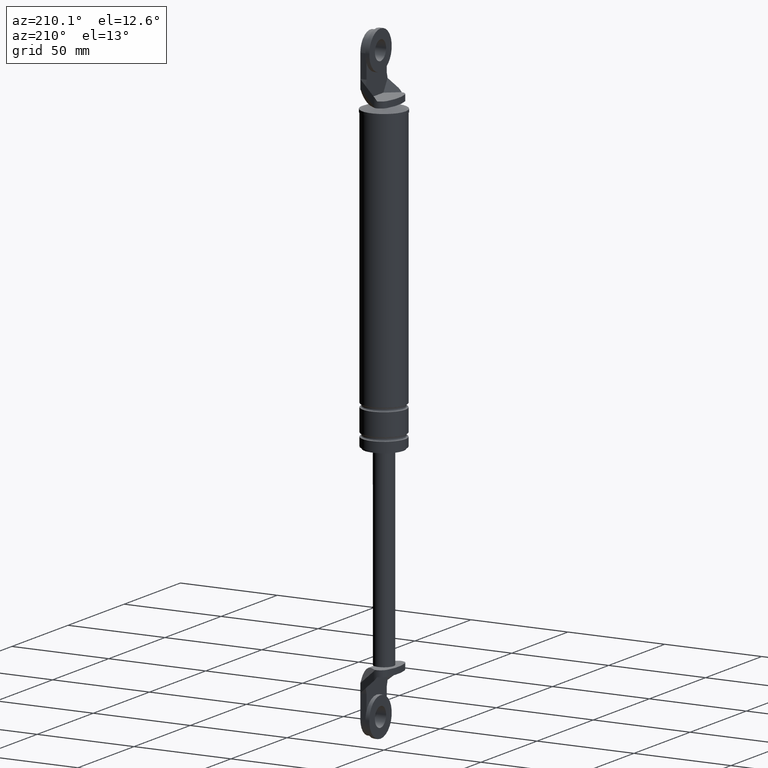
[diagram: clean part render]
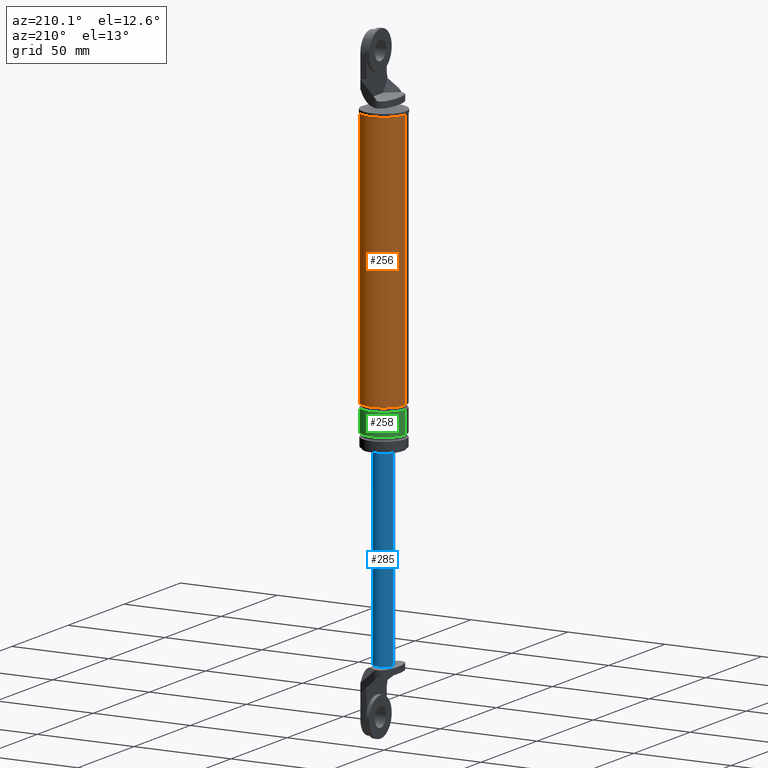
[diagram: same view with three faces highlighted in distinct colors, each labeled with its STEP entity id]
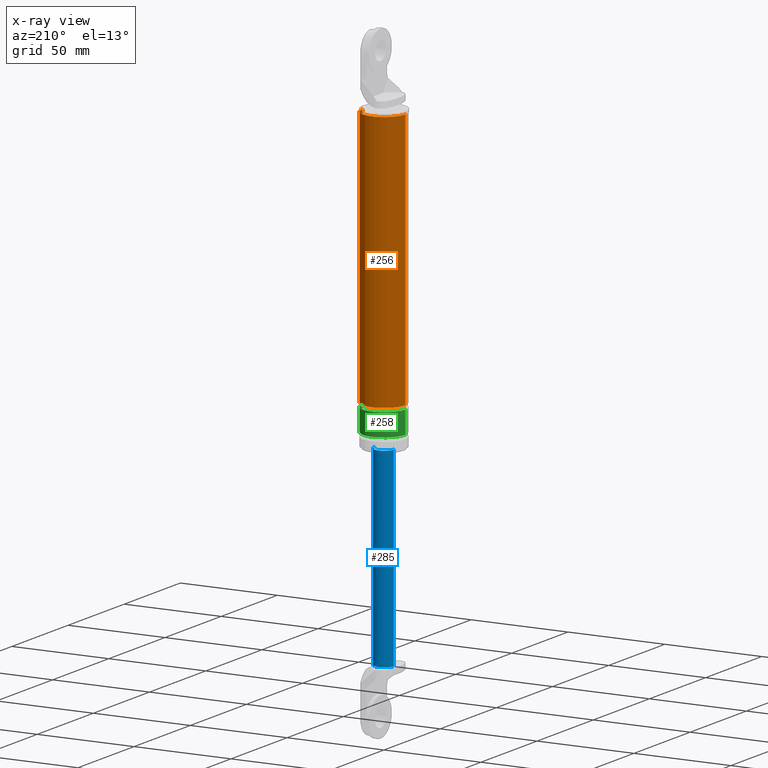
[diagram: x-ray of the same camera — body ghosted, the three highlighted faces saturated]
A machine part, auxiliary view with three faces highlighted in distinct colors.
The next image is the same camera in x-ray (body ghosted, the three faces saturated) — at least one of them is partly hidden behind the body in this view.
Their STEP definitions:

[orange] entity #256 — the highlighted cylindrical surface (edge-blend (fillet) strip) has radius 11 mm, axis along (0, 0, 1).
#256=ADVANCED_FACE('',(#817),#816,.T.);
#816=CYLINDRICAL_SURFACE('',#1576,1.10000000000E+001);
#817=FACE_OUTER_BOUND('',#1577,.T.);
#1573=CARTESIAN_POINT('',(0.00000000000E+000,3.58204186421E-014,0.00000000000E+000));
#1574=DIRECTION('',(-0.00000000000E+000,-0.00000000000E+000,1.00000000000E+000));
#1575=DIRECTION('',(1.00000000000E+000,0.00000000000E+000,0.00000000000E+000));
#1576=AXIS2_PLACEMENT_3D('',#1573,#1574,#1575);
#1577=EDGE_LOOP('',(#2022,#2023,#2024,#2025));
#2022=ORIENTED_EDGE('',*,*,#2274,.T.);
#2023=ORIENTED_EDGE('',*,*,#2305,.F.);
#2024=ORIENTED_EDGE('',*,*,#2287,.F.);
#2025=ORIENTED_EDGE('',*,*,#2306,.T.);
#2274=EDGE_CURVE('',#3009,#3008,#3016,.T.);
#2287=EDGE_CURVE('',#3096,#3097,#3098,.T.);
#2305=EDGE_CURVE('',#3097,#3008,#3212,.T.);
#2306=EDGE_CURVE('',#3096,#3009,#3218,.T.);
#3008=VERTEX_POINT('',#4107);
#3009=VERTEX_POINT('',#4108);
#3016=CIRCLE('',#4116,1.10000000000E+001);
#3096=VERTEX_POINT('',#4155);
#3097=VERTEX_POINT('',#4156);
#3098=CIRCLE('',#4160,1.10000000000E+001);
#3212=(BOUNDED_CURVE() B_SPLINE_CURVE(1,(#4227,#4228),.UNSPECIFIED.,.F.,.F.) B_SPLINE_CURVE_WITH_KNOTS((2,2),(6.53594771397E-002,9.34640522737E-001),.UNSPECIFIED.) CURVE() GEOMETRIC_REPRESENTATION_ITEM() RATIONAL_B_SPLINE_CURVE((1.00000000000E+000,1.00000000000E+000)) REPRESENTATION_ITEM('') );
#3218=(BOUNDED_CURVE() B_SPLINE_CURVE(1,(#4229,#4230),.UNSPECIFIED.,.F.,.F.) B_SPLINE_CURVE_WITH_KNOTS((2,2),(6.53594771242E-002,9.34640522876E-001),.UNSPECIFIED.) CURVE() GEOMETRIC_REPRESENTATION_ITEM() RATIONAL_B_SPLINE_CURVE((7.50000000000E-001,7.50000000000E-001)) REPRESENTATION_ITEM('') );
#4107=CARTESIAN_POINT('',(1.10000000000E+001,3.61192557345E-014,8.49999850000E+001));
#4108=CARTESIAN_POINT('',(-1.10000000000E+001,3.58204186421E-014,8.49999850000E+001));
#4113=CARTESIAN_POINT('',(0.00000000000E+000,3.58204186421E-014,8.49999850000E+001));
#4114=DIRECTION('',(-0.00000000000E+000,0.00000000000E+000,-1.00000000000E+000));
#4115=DIRECTION('',(-1.00000000000E+000,-1.22460635382E-016,0.00000000000E+000));
#4116=AXIS2_PLACEMENT_3D('',#4113,#4114,#4115);
#4155=CARTESIAN_POINT('',(-1.10000000000E+001,3.58204186421E-014,-4.80000150000E+001));
#4156=CARTESIAN_POINT('',(1.10000000000E+001,3.61192557345E-014,-4.80000150000E+001));
#4157=CARTESIAN_POINT('',(0.00000000000E+000,3.58204186421E-014,-4.80000150000E+001));
#4158=DIRECTION('',(-0.00000000000E+000,0.00000000000E+000,-1.00000000000E+000));
#4159=DIRECTION('',(-1.00000000000E+000,-1.22460635382E-016,0.00000000000E+000));
#4160=AXIS2_PLACEMENT_3D('',#4157,#4158,#4159);
#4227=CARTESIAN_POINT('',(1.10000000000E+001,3.58204186421E-014,-4.80000149976E+001));
#4228=CARTESIAN_POINT('',(1.10000000000E+001,3.58204186421E-014,8.49999849788E+001));
#4229=CARTESIAN_POINT('',(-1.10000000000E+001,3.55271367880E-014,-4.80000150000E+001));
#4230=CARTESIAN_POINT('',(-1.10000000000E+001,3.55271367880E-014,8.49999850000E+001));

[blue] entity #285 — the highlighted cylindrical surface (edge-blend (fillet) strip) has radius 5 mm, axis along (0, 0, 1).
#285=ADVANCED_FACE('',(#1109),#1108,.T.);
#1108=CYLINDRICAL_SURFACE('',#1773,5.00000000000E+000);
#1109=FACE_OUTER_BOUND('',#1774,.T.);
#1770=CARTESIAN_POINT('',(0.00000000000E+000,3.58204186421E-014,0.00000000000E+000));
#1771=DIRECTION('',(-0.00000000000E+000,-0.00000000000E+000,1.00000000000E+000));
#1772=DIRECTION('',(1.00000000000E+000,0.00000000000E+000,0.00000000000E+000));
#1773=AXIS2_PLACEMENT_3D('',#1770,#1771,#1772);
#1774=EDGE_LOOP('',(#2170,#2171,#2172,#2173,#2174));
#2170=ORIENTED_EDGE('',*,*,#2374,.T.);
#2171=ORIENTED_EDGE('',*,*,#2378,.F.);
#2172=ORIENTED_EDGE('',*,*,#2362,.F.);
#2173=ORIENTED_EDGE('',*,*,#2366,.F.);
#2174=ORIENTED_EDGE('',*,*,#2379,.T.);
#2362=EDGE_CURVE('',#3244,#3594,#3595,.T.);
#2366=EDGE_CURVE('',#3613,#3244,#3620,.T.);
#2374=EDGE_CURVE('',#3665,#3664,#3672,.T.);
#2378=EDGE_CURVE('',#3594,#3664,#3696,.T.);
#2379=EDGE_CURVE('',#3613,#3665,#3702,.T.);
#3244=VERTEX_POINT('',#4240);
#3594=VERTEX_POINT('',#4448);
#3595=CIRCLE('',#4452,5.00000000000E+000);
#3613=VERTEX_POINT('',#4460);
#3620=CIRCLE('',#4468,5.00000000000E+000);
#3664=VERTEX_POINT('',#4492);
#3665=VERTEX_POINT('',#4493);
#3672=CIRCLE('',#4501,5.00000000000E+000);
#3696=(BOUNDED_CURVE() B_SPLINE_CURVE(1,(#4510,#4511),.UNSPECIFIED.,.F.,.F.) B_SPLINE_CURVE_WITH_KNOTS((2,2),(8.33333332085E-002,9.16666666563E-001),.UNSPECIFIED.) CURVE() GEOMETRIC_REPRESENTATION_ITEM() RATIONAL_B_SPLINE_CURVE((1.00000000000E+000,1.00000000000E+000)) REPRESENTATION_ITEM('') );
#3702=(BOUNDED_CURVE() B_SPLINE_CURVE(1,(#4512,#4513),.UNSPECIFIED.,.F.,.F.) B_SPLINE_CURVE_WITH_KNOTS((2,2),(8.33333333333E-002,9.16666666667E-001),.UNSPECIFIED.) CURVE() GEOMETRIC_REPRESENTATION_ITEM() RATIONAL_B_SPLINE_CURVE((7.50000000000E-001,7.50000000000E-001)) REPRESENTATION_ITEM('') );
#4240=CARTESIAN_POINT('',(2.00000000000E+000,4.58257569496E+000,-1.68000015000E+002));
#4448=CARTESIAN_POINT('',(5.00000000000E+000,1.01515834226E-011,-1.68000015000E+002));
#4449=CARTESIAN_POINT('',(0.00000000000E+000,3.58204186421E-014,-1.68000015000E+002));
#4450=DIRECTION('',(0.00000000000E+000,0.00000000000E+000,-1.00000000000E+000));
#4451=DIRECTION('',(4.00000000000E-001,9.16515138991E-001,0.00000000000E+000));
#4452=AXIS2_PLACEMENT_3D('',#4449,#4450,#4451);
#4460=CARTESIAN_POINT('',(-5.00000000000E+000,8.97827335548E-007,-1.68000015000E+002));
#4465=CARTESIAN_POINT('',(0.00000000000E+000,3.58204186421E-014,-1.68000015000E+002));
#4466=DIRECTION('',(0.00000000000E+000,0.00000000000E+000,-1.00000000000E+000));
#4467=DIRECTION('',(1.00000000000E+000,-0.00000000000E+000,-0.00000000000E+000));
#4468=AXIS2_PLACEMENT_3D('',#4465,#4466,#4467);
#4492=CARTESIAN_POINT('',(5.00000000000E+000,3.58231962612E-014,-6.90000150000E+001));
#4493=CARTESIAN_POINT('',(-5.00000000000E+000,3.58204186421E-014,-6.90000150000E+001));
#4498=CARTESIAN_POINT('',(0.00000000000E+000,3.58204186421E-014,-6.90000150000E+001));
#4499=DIRECTION('',(-0.00000000000E+000,0.00000000000E+000,-1.00000000000E+000));
#4500=DIRECTION('',(-1.00000000000E+000,-1.22460635382E-016,0.00000000000E+000));
#4501=AXIS2_PLACEMENT_3D('',#4498,#4499,#4500);
#4510=CARTESIAN_POINT('',(5.00000000000E+000,3.58204186421E-014,-1.68000015015E+002));
#4511=CARTESIAN_POINT('',(5.00000000000E+000,3.58204186421E-014,-6.90000150123E+001));
#4512=CARTESIAN_POINT('',(-5.00000000000E+000,3.55271367880E-014,-1.68000015000E+002));
#4513=CARTESIAN_POINT('',(-5.00000000000E+000,3.55271367880E-014,-6.90000150000E+001));

[green] entity #258 — the highlighted cylindrical surface (edge-blend (fillet) strip) has radius 11 mm, axis along (0, 0, 1).
#258=ADVANCED_FACE('',(#837),#836,.T.);
#836=CYLINDRICAL_SURFACE('',#1586,1.10000000000E+001);
#837=FACE_OUTER_BOUND('',#1587,.T.);
#1583=CARTESIAN_POINT('',(0.00000000000E+000,3.58204186421E-014,0.00000000000E+000));
#1584=DIRECTION('',(-0.00000000000E+000,-0.00000000000E+000,1.00000000000E+000));
#1585=DIRECTION('',(1.00000000000E+000,0.00000000000E+000,0.00000000000E+000));
#1586=AXIS2_PLACEMENT_3D('',#1583,#1584,#1585);
#1587=EDGE_LOOP('',(#2030,#2031,#2032,#2033));
#2030=ORIENTED_EDGE('',*,*,#2289,.T.);
#2031=ORIENTED_EDGE('',*,*,#2307,.F.);
#2032=ORIENTED_EDGE('',*,*,#2293,.F.);
#2033=ORIENTED_EDGE('',*,*,#2308,.T.);
#2289=EDGE_CURVE('',#3111,#3104,#3112,.T.);
#2293=EDGE_CURVE('',#3136,#3137,#3138,.T.);
#2307=EDGE_CURVE('',#3137,#3104,#3224,.T.);
#2308=EDGE_CURVE('',#3136,#3111,#3230,.T.);
#3104=VERTEX_POINT('',#4161);
#3111=VERTEX_POINT('',#4167);
#3112=CIRCLE('',#4171,1.10000000000E+001);
#3136=VERTEX_POINT('',#4185);
#3137=VERTEX_POINT('',#4186);
#3138=CIRCLE('',#4190,1.10000000000E+001);
#3224=(BOUNDED_CURVE() B_SPLINE_CURVE(1,(#4231,#4232),.UNSPECIFIED.,.F.,.F.) B_SPLINE_CURVE_WITH_KNOTS((2,2),(8.33333343261E-002,9.16666667006E-001),.UNSPECIFIED.) CURVE() GEOMETRIC_REPRESENTATION_ITEM() RATIONAL_B_SPLINE_CURVE((1.00000000000E+000,1.00000000000E+000)) REPRESENTATION_ITEM('') );
#3230=(BOUNDED_CURVE() B_SPLINE_CURVE(1,(#4233,#4234),.UNSPECIFIED.,.F.,.F.) B_SPLINE_CURVE_WITH_KNOTS((2,2),(8.33333333333E-002,9.16666666667E-001),.UNSPECIFIED.) CURVE() GEOMETRIC_REPRESENTATION_ITEM() RATIONAL_B_SPLINE_CURVE((7.50000000000E-001,7.50000000000E-001)) REPRESENTATION_ITEM('') );
#4161=CARTESIAN_POINT('',(1.10000000000E+001,3.61192557345E-014,-5.00000150000E+001));
#4167=CARTESIAN_POINT('',(-1.10000000000E+001,3.58204186421E-014,-5.00000150000E+001));
#4168=CARTESIAN_POINT('',(0.00000000000E+000,3.58204186421E-014,-5.00000150000E+001));
#4169=DIRECTION('',(-0.00000000000E+000,0.00000000000E+000,-1.00000000000E+000));
#4170=DIRECTION('',(-1.00000000000E+000,-1.22460635382E-016,0.00000000000E+000));
#4171=AXIS2_PLACEMENT_3D('',#4168,#4169,#4170);
#4185=CARTESIAN_POINT('',(-1.10000000000E+001,3.58204186421E-014,-6.15000150000E+001));
#4186=CARTESIAN_POINT('',(1.10000000000E+001,3.61192557345E-014,-6.15000150000E+001));
#4187=CARTESIAN_POINT('',(0.00000000000E+000,3.58204186421E-014,-6.15000150000E+001));
#4188=DIRECTION('',(-0.00000000000E+000,0.00000000000E+000,-1.00000000000E+000));
#4189=DIRECTION('',(-1.00000000000E+000,-1.22460635382E-016,0.00000000000E+000));
#4190=AXIS2_PLACEMENT_3D('',#4187,#4188,#4189);
#4231=CARTESIAN_POINT('',(1.10000000000E+001,3.58204186421E-014,-6.15000149863E+001));
#4232=CARTESIAN_POINT('',(1.10000000000E+001,3.58204186421E-014,-5.00000149953E+001));
#4233=CARTESIAN_POINT('',(-1.10000000000E+001,3.55271367880E-014,-6.15000150000E+001));
#4234=CARTESIAN_POINT('',(-1.10000000000E+001,3.55271367880E-014,-5.00000150000E+001));